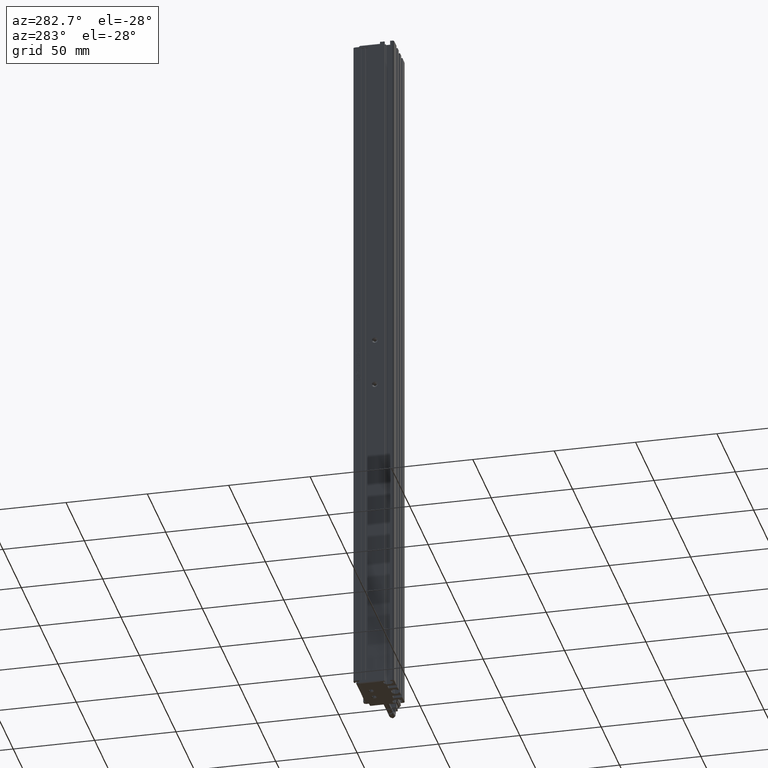
[diagram: clean part render]
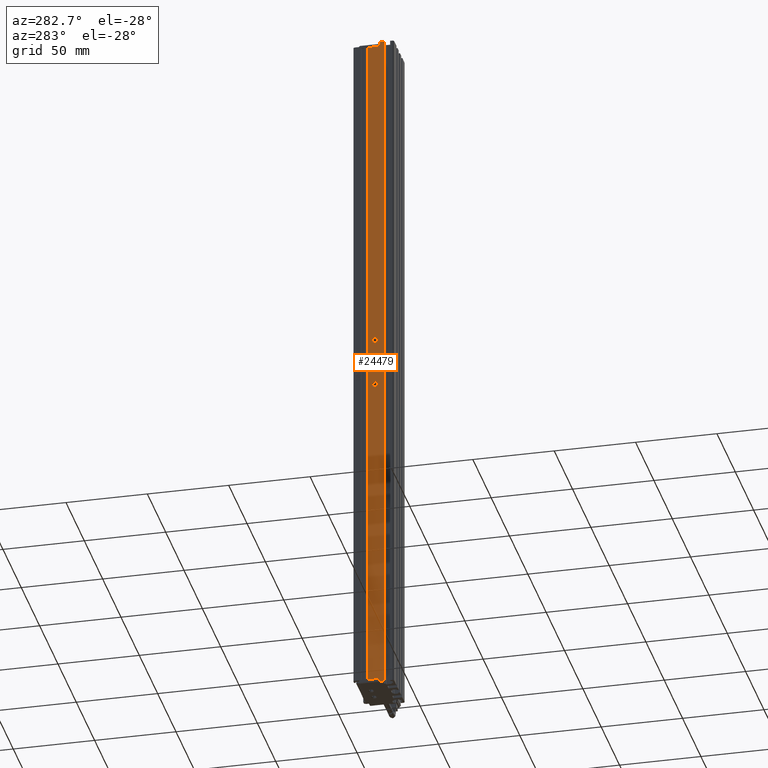
[diagram: same view with one face highlighted and labeled with its STEP entity id]
A machine part, auxiliary view. The second image highlights one B-rep face of the part: STEP entity #24479.
In plain terms, the highlighted planar face has unit normal (-1, 0, 0).
Its self-contained STEP definition (entity closure, byte-faithful):
#414 = CARTESIAN_POINT ( 'NONE',  ( 25.92537974684906700, 22.39594479660386700, -100.0000000000000000 ) ) ;
#1401 = EDGE_LOOP ( 'NONE', ( #54817, #67388 ) ) ;
#1575 = CARTESIAN_POINT ( 'NONE',  ( 25.92537974683541800, 16.49594479660387200, 102.0000000000000000 ) ) ;
#2313 = EDGE_CURVE ( 'NONE', #61237, #5954, #36737, .T. ) ;
#2324 = VECTOR ( 'NONE', #52024, 1000.000000000000000 ) ;
#3092 = CARTESIAN_POINT ( 'NONE',  ( 25.92537974683541800, 26.69594479660386800, -330.0000000000000000 ) ) ;
#4531 = LINE ( 'NONE', #1575, #35461 ) ;
#5954 = VERTEX_POINT ( 'NONE', #70134 ) ;
#6643 = DIRECTION ( 'NONE',  ( 0.0000000000000000000, 0.0000000000000000000, 1.000000000000000000 ) ) ;
#6773 = CARTESIAN_POINT ( 'NONE',  ( 25.92537974683541800, 19.19594479660386500, 102.0000000000000000 ) ) ;
#7772 = VECTOR ( 'NONE', #16480, 1000.000000000000000 ) ;
#7888 = VERTEX_POINT ( 'NONE', #29495 ) ;
#8674 = CARTESIAN_POINT ( 'NONE',  ( 25.92537974684906700, 22.39594479660386700, -100.0000000000000000 ) ) ;
#9707 = CARTESIAN_POINT ( 'NONE',  ( 25.92537974683542100, 35.69594479660387500, 99.99999999999998600 ) ) ;
#9714 = CARTESIAN_POINT ( 'NONE',  ( 25.92537974683541800, 7.083797468354437600, -330.0000000000000000 ) ) ;
#11148 = EDGE_LOOP ( 'NONE', ( #38102, #32959 ) ) ;
#11433 = CIRCLE ( 'NONE', #62771, 1.799999999989268400 ) ;
#11858 = AXIS2_PLACEMENT_3D ( 'NONE', #61749, #25087, #67923 ) ;
#12688 = CARTESIAN_POINT ( 'NONE',  ( 25.92537974683541800, 16.49594479660387200, 102.0000000000000000 ) ) ;
#14895 = DIRECTION ( 'NONE',  ( 0.0000000000000000000, 0.0000000000000000000, 1.000000000000000000 ) ) ;
#16480 = DIRECTION ( 'NONE',  ( 0.0000000000000000000, 1.000000000000000000, -0.0000000000000000000 ) ) ;
#17600 = CARTESIAN_POINT ( 'NONE',  ( 25.92537974679222400, 22.39594479660386700, -128.1999999999266000 ) ) ;
#18486 = VERTEX_POINT ( 'NONE', #12688 ) ;
#20563 = CARTESIAN_POINT ( 'NONE',  ( 25.92537974683541800, 16.49594479660387200, -332.0000000000000000 ) ) ;
#21862 = DIRECTION ( 'NONE',  ( -0.0000000000000000000, -1.000000000000000000, 0.0000000000000000000 ) ) ;
#23664 = EDGE_CURVE ( 'NONE', #5954, #65530, #29888, .T. ) ;
#23695 = DIRECTION ( 'NONE',  ( -1.000000000000000000, 0.0000000000000000000, 0.0000000000000000000 ) ) ;
#23903 = ORIENTED_EDGE ( 'NONE', *, *, #55316, .T. ) ;
#24210 = CARTESIAN_POINT ( 'NONE',  ( 25.92537974683541800, 7.083797468354437600, -332.0000000000000000 ) ) ;
#24479 = ADVANCED_FACE ( 'NONE', ( #73548, #24708, #55322 ), #29638, .T. ) ;
#24708 = FACE_BOUND ( 'NONE', #1401, .T. ) ;
#25042 = ORIENTED_EDGE ( 'NONE', *, *, #55882, .T. ) ;
#25087 = DIRECTION ( 'NONE',  ( 1.000000000000000000, -0.0000000000000000000, -0.0000000000000000000 ) ) ;
#25299 = LINE ( 'NONE', #6773, #55902 ) ;
#25691 = ORIENTED_EDGE ( 'NONE', *, *, #2313, .T. ) ;
#25934 = EDGE_CURVE ( 'NONE', #18486, #7888, #40569, .T. ) ;
#27318 = CARTESIAN_POINT ( 'NONE',  ( 25.92537974679222400, 22.39594479660386700, -131.8000000000734200 ) ) ;
#27526 = ORIENTED_EDGE ( 'NONE', *, *, #23664, .T. ) ;
#28826 = VERTEX_POINT ( 'NONE', #62483 ) ;
#28921 = VERTEX_POINT ( 'NONE', #75326 ) ;
#29495 = CARTESIAN_POINT ( 'NONE',  ( 25.92537974683541800, 19.19594479660386500, 102.0000000000000000 ) ) ;
#29638 = PLANE ( 'NONE',  #48229 ) ;
#29888 = LINE ( 'NONE', #50329, #76769 ) ;
#31581 = ORIENTED_EDGE ( 'NONE', *, *, #40085, .T. ) ;
#31870 = EDGE_CURVE ( 'NONE', #28921, #38110, #11433, .T. ) ;
#32959 = ORIENTED_EDGE ( 'NONE', *, *, #70729, .T. ) ;
#33454 = DIRECTION ( 'NONE',  ( 0.0000000000000000000, 1.000000000000000000, 0.0000000000000000000 ) ) ;
#33898 = EDGE_CURVE ( 'NONE', #38110, #28921, #62433, .T. ) ;
#35226 = LINE ( 'NONE', #45914, #2324 ) ;
#35461 = VECTOR ( 'NONE', #75187, 1000.000000000000000 ) ;
#36471 = CARTESIAN_POINT ( 'NONE',  ( 25.92537974679222400, 22.39594479660386700, -130.0000000000000000 ) ) ;
#36737 = LINE ( 'NONE', #9707, #67316 ) ;
#37384 = AXIS2_PLACEMENT_3D ( 'NONE', #8674, #51644, #14895 ) ;
#37563 = CIRCLE ( 'NONE', #11858, 1.800000000073409500 ) ;
#38102 = ORIENTED_EDGE ( 'NONE', *, *, #40691, .T. ) ;
#38110 = VERTEX_POINT ( 'NONE', #77122 ) ;
#38289 = VECTOR ( 'NONE', #21862, 1000.000000000000000 ) ;
#39336 = EDGE_CURVE ( 'NONE', #46832, #74704, #59073, .T. ) ;
#40085 = EDGE_CURVE ( 'NONE', #7888, #61237, #25299, .T. ) ;
#40218 = LINE ( 'NONE', #9714, #38289 ) ;
#40562 = ORIENTED_EDGE ( 'NONE', *, *, #25934, .T. ) ;
#40569 = LINE ( 'NONE', #52958, #7772 ) ;
#40691 = EDGE_CURVE ( 'NONE', #53447, #74759, #37563, .T. ) ;
#42594 = DIRECTION ( 'NONE',  ( 0.0000000000000000000, 0.0000000000000000000, 1.000000000000000000 ) ) ;
#43555 = DIRECTION ( 'NONE',  ( 1.000000000000000000, -0.0000000000000000000, -0.0000000000000000000 ) ) ;
#45914 = CARTESIAN_POINT ( 'NONE',  ( 25.92537974683542100, 19.19594479660386500, 102.0000000000000000 ) ) ;
#46832 = VERTEX_POINT ( 'NONE', #48216 ) ;
#47057 = EDGE_CURVE ( 'NONE', #74704, #18486, #4531, .T. ) ;
#48216 = CARTESIAN_POINT ( 'NONE',  ( 25.92537974683541800, 19.19594479660386500, -332.0000000000000000 ) ) ;
#48229 = AXIS2_PLACEMENT_3D ( 'NONE', #60382, #23695, #66539 ) ;
#50329 = CARTESIAN_POINT ( 'NONE',  ( 25.92537974683541800, 26.69594479660386800, 102.0000000000000000 ) ) ;
#51644 = DIRECTION ( 'NONE',  ( 1.000000000000000000, -0.0000000000000000000, -0.0000000000000000000 ) ) ;
#52024 = DIRECTION ( 'NONE',  ( 0.0000000000000000000, -0.0000000000000000000, -1.000000000000000000 ) ) ;
#52958 = CARTESIAN_POINT ( 'NONE',  ( 25.92537974683541800, 7.083797468354437600, 102.0000000000000000 ) ) ;
#53447 = VERTEX_POINT ( 'NONE', #17600 ) ;
#54677 = ORIENTED_EDGE ( 'NONE', *, *, #47057, .T. ) ;
#54817 = ORIENTED_EDGE ( 'NONE', *, *, #33898, .T. ) ;
#55316 = EDGE_CURVE ( 'NONE', #65530, #28826, #40218, .T. ) ;
#55322 = FACE_BOUND ( 'NONE', #11148, .T. ) ;
#55882 = EDGE_CURVE ( 'NONE', #28826, #46832, #35226, .T. ) ;
#55902 = VECTOR ( 'NONE', #55920, 1000.000000000000000 ) ;
#55920 = DIRECTION ( 'NONE',  ( 0.0000000000000000000, -0.0000000000000000000, -1.000000000000000000 ) ) ;
#56486 = DIRECTION ( 'NONE',  ( -0.0000000000000000000, -0.0000000000000000000, -1.000000000000000000 ) ) ;
#58027 = CARTESIAN_POINT ( 'NONE',  ( 25.92537974683541800, 19.19594479660386500, 99.99999999999998600 ) ) ;
#58214 = EDGE_LOOP ( 'NONE', ( #40562, #31581, #25691, #27526, #23903, #25042, #61989, #54677 ) ) ;
#59073 = LINE ( 'NONE', #24210, #75355 ) ;
#60382 = CARTESIAN_POINT ( 'NONE',  ( 25.92537974683541800, 7.083797468354437600, 102.0000000000000000 ) ) ;
#61237 = VERTEX_POINT ( 'NONE', #58027 ) ;
#61644 = CIRCLE ( 'NONE', #62593, 1.800000000073409500 ) ;
#61749 = CARTESIAN_POINT ( 'NONE',  ( 25.92537974679222400, 22.39594479660386700, -130.0000000000000000 ) ) ;
#61989 = ORIENTED_EDGE ( 'NONE', *, *, #39336, .T. ) ;
#62433 = CIRCLE ( 'NONE', #37384, 1.799999999989268400 ) ;
#62483 = CARTESIAN_POINT ( 'NONE',  ( 25.92537974683541800, 19.19594479660386500, -330.0000000000000000 ) ) ;
#62593 = AXIS2_PLACEMENT_3D ( 'NONE', #36471, #79186, #42594 ) ;
#62771 = AXIS2_PLACEMENT_3D ( 'NONE', #414, #43555, #6643 ) ;
#65530 = VERTEX_POINT ( 'NONE', #3092 ) ;
#66539 = DIRECTION ( 'NONE',  ( 0.0000000000000000000, 0.0000000000000000000, 1.000000000000000000 ) ) ;
#67316 = VECTOR ( 'NONE', #33454, 1000.000000000000000 ) ;
#67388 = ORIENTED_EDGE ( 'NONE', *, *, #31870, .T. ) ;
#67923 = DIRECTION ( 'NONE',  ( 0.0000000000000000000, 0.0000000000000000000, 1.000000000000000000 ) ) ;
#70134 = CARTESIAN_POINT ( 'NONE',  ( 25.92537974683541800, 26.69594479660386800, 99.99999999999998600 ) ) ;
#70729 = EDGE_CURVE ( 'NONE', #74759, #53447, #61644, .T. ) ;
#73202 = DIRECTION ( 'NONE',  ( -0.0000000000000000000, -1.000000000000000000, 0.0000000000000000000 ) ) ;
#73548 = FACE_OUTER_BOUND ( 'NONE', #58214, .T. ) ;
#74704 = VERTEX_POINT ( 'NONE', #20563 ) ;
#74759 = VERTEX_POINT ( 'NONE', #27318 ) ;
#75187 = DIRECTION ( 'NONE',  ( 0.0000000000000000000, 0.0000000000000000000, 1.000000000000000000 ) ) ;
#75326 = CARTESIAN_POINT ( 'NONE',  ( 25.92537974684906700, 22.39594479660386700, -101.7999999999892700 ) ) ;
#75355 = VECTOR ( 'NONE', #73202, 1000.000000000000000 ) ;
#76769 = VECTOR ( 'NONE', #56486, 1000.000000000000000 ) ;
#77122 = CARTESIAN_POINT ( 'NONE',  ( 25.92537974684906700, 22.39594479660386700, -98.20000000001073200 ) ) ;
#79186 = DIRECTION ( 'NONE',  ( 1.000000000000000000, -0.0000000000000000000, -0.0000000000000000000 ) ) ;